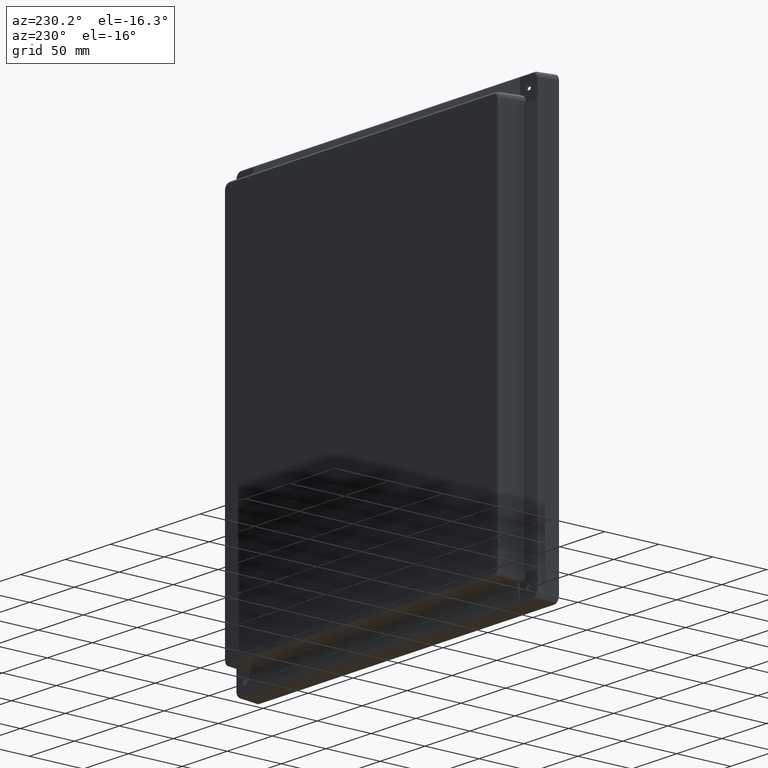
[diagram: clean part render]
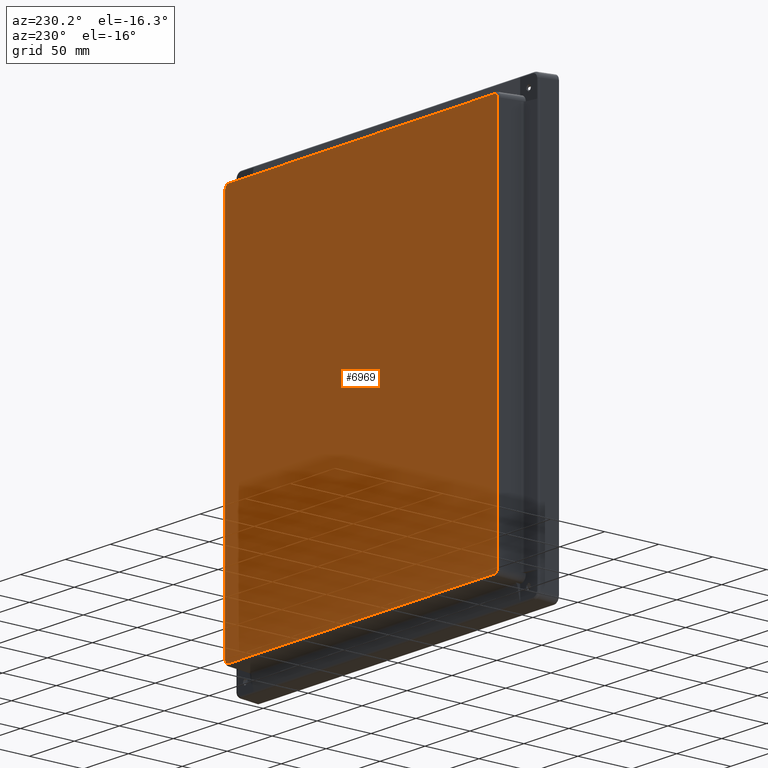
[diagram: same view with one face highlighted and labeled with its STEP entity id]
A machine part, auxiliary view. The second image highlights one B-rep face of the part: STEP entity #6969.
In plain terms, the highlighted planar face has unit normal (0, 1, 0).
Its self-contained STEP definition (entity closure, byte-faithful):
#6955 = EDGE_CURVE ( 'NONE', #7041, #6956, #9840, .T. ) ;
#6956 = VERTEX_POINT ( 'NONE', #9836 ) ;
#6957 = ORIENTED_EDGE ( 'NONE', *, *, #6958, .T. ) ;
#6958 = EDGE_CURVE ( 'NONE', #6956, #6959, #9834, .T. ) ;
#6959 = VERTEX_POINT ( 'NONE', #9833 ) ;
#6969 = ADVANCED_FACE ( 'NONE', ( #9871 ), #9870, .T. ) ;
#6970 = EDGE_LOOP ( 'NONE', ( #6971, #7033, #7036, #7039, #7042, #6957, #7019, #7022 ) ) ;
#6971 = ORIENTED_EDGE ( 'NONE', *, *, #6972, .T. ) ;
#6972 = EDGE_CURVE ( 'NONE', #6973, #6974, #9868, .T. ) ;
#6973 = VERTEX_POINT ( 'NONE', #9861 ) ;
#6974 = VERTEX_POINT ( 'NONE', #9860 ) ;
#7019 = ORIENTED_EDGE ( 'NONE', *, *, #7020, .T. ) ;
#7020 = EDGE_CURVE ( 'NONE', #6959, #7021, #9967, .T. ) ;
#7021 = VERTEX_POINT ( 'NONE', #9963 ) ;
#7022 = ORIENTED_EDGE ( 'NONE', *, *, #7023, .T. ) ;
#7023 = EDGE_CURVE ( 'NONE', #7021, #6973, #9961, .T. ) ;
#7033 = ORIENTED_EDGE ( 'NONE', *, *, #7034, .T. ) ;
#7034 = EDGE_CURVE ( 'NONE', #6974, #7035, #9994, .T. ) ;
#7035 = VERTEX_POINT ( 'NONE', #9993 ) ;
#7036 = ORIENTED_EDGE ( 'NONE', *, *, #7037, .T. ) ;
#7037 = EDGE_CURVE ( 'NONE', #7035, #7038, #9995, .T. ) ;
#7038 = VERTEX_POINT ( 'NONE', #9977 ) ;
#7039 = ORIENTED_EDGE ( 'NONE', *, *, #7040, .T. ) ;
#7040 = EDGE_CURVE ( 'NONE', #7038, #7041, #10039, .T. ) ;
#7041 = VERTEX_POINT ( 'NONE', #10038 ) ;
#7042 = ORIENTED_EDGE ( 'NONE', *, *, #6955, .T. ) ;
#7217 = CARTESIAN_POINT ( 'NONE',  ( 151.6330037502764600, 34.00000000000000000, 174.3041769975908700 ) ) ;
#8759 = CARTESIAN_POINT ( 'NONE',  ( 151.6348593914733000, 34.00000000000000000, 174.8059933008251500 ) ) ;
#9820 = CARTESIAN_POINT ( 'NONE',  ( 151.5372547930608100, 34.00000000000001400, 175.2942391105824000 ) ) ;
#9821 = CARTESIAN_POINT ( 'NONE',  ( 151.1431251170169500, 34.00000000000000000, 176.2435897431427300 ) ) ;
#9822 = CARTESIAN_POINT ( 'NONE',  ( 150.8675752403602500, 34.00000000000000000, 176.6569440721336000 ) ) ;
#9823 = CARTESIAN_POINT ( 'NONE',  ( 150.1568282157539300, 34.00000000000000000, 177.3674593839804500 ) ) ;
#9824 = CARTESIAN_POINT ( 'NONE',  ( 149.7418262364449500, 34.00000000000000700, 177.6440281517859000 ) ) ;
#9825 = CARTESIAN_POINT ( 'NONE',  ( 149.0324585220715200, 34.00000000000000000, 177.9382708566650700 ) ) ;
#9826 = CARTESIAN_POINT ( 'NONE',  ( 148.7905390636747400, 34.00000000000000000, 178.0123885963522200 ) ) ;
#9827 = CARTESIAN_POINT ( 'NONE',  ( 148.3022932539175300, 33.99999999999999300, 178.1099931947647700 ) ) ;
#9828 = CARTESIAN_POINT ( 'NONE',  ( 148.0548802001825400, 34.00000000000000000, 178.1339308130040400 ) ) ;
#9829 = CARTESIAN_POINT ( 'NONE',  ( 147.8041769975909900, 34.00000000000000000, 178.1330037502763700 ) ) ;
#9833 = CARTESIAN_POINT ( 'NONE',  ( 151.6330037502764600, 34.00000000000000000, 174.3041769975908700 ) ) ;
#9834 = B_SPLINE_CURVE_WITH_KNOTS ( 'NONE', 3,
 ( #9829, #9828, #9827, #9826, #9825, #9824, #9823, #9822, #9821, #9820, #8759, #7217 ),
 .UNSPECIFIED., .F., .F.,
 ( 4, 2, 2, 2, 2, 4 ),
 ( 0.0000000000000000000, 0.1249999999999933400, 0.2499999999999866800, 0.4999999999999911200, 0.7499999999999955600, 1.000000000000000000 ),
 .UNSPECIFIED. ) ;
#9836 = CARTESIAN_POINT ( 'NONE',  ( 147.8041769975909900, 34.00000000000000000, 178.1330037502763700 ) ) ;
#9837 = DIRECTION ( 'NONE',  ( 1.000000000000000000, 0.0000000000000000000, 0.0000000000000000000 ) ) ;
#9838 = VECTOR ( 'NONE', #9837, 1000.000000000000000 ) ;
#9839 = CARTESIAN_POINT ( 'NONE',  ( 147.7256730632264500, 34.00000000000000000, 178.1330037502763700 ) ) ;
#9840 = LINE ( 'NONE', #9839, #9838 ) ;
#9860 = CARTESIAN_POINT ( 'NONE',  ( -147.8041769975909000, 34.00000000000000000, -178.1330037502763400 ) ) ;
#9861 = CARTESIAN_POINT ( 'NONE',  ( 147.8041769975908700, 34.00000000000000000, -178.1330037502764000 ) ) ;
#9862 = DIRECTION ( 'NONE',  ( -1.000000000000000000, 0.0000000000000000000, 0.0000000000000000000 ) ) ;
#9863 = VECTOR ( 'NONE', #9862, 1000.000000000000000 ) ;
#9864 = CARTESIAN_POINT ( 'NONE',  ( -147.7256730632265100, 34.00000000000000000, -178.1330037502763400 ) ) ;
#9865 = DIRECTION ( 'NONE',  ( 0.0000000000000000000, -0.0000000000000000000, 1.000000000000000000 ) ) ;
#9866 = DIRECTION ( 'NONE',  ( 0.0000000000000000000, 1.000000000000000000, 0.0000000000000000000 ) ) ;
#9867 = AXIS2_PLACEMENT_3D ( 'NONE', #9869, #9866, #9865 ) ;
#9868 = LINE ( 'NONE', #9864, #9863 ) ;
#9869 = CARTESIAN_POINT ( 'NONE',  ( -155.0000000000000000, 34.00000000000000000, 181.5000000000000000 ) ) ;
#9870 = PLANE ( 'NONE',  #9867 ) ;
#9871 = FACE_OUTER_BOUND ( 'NONE', #6970, .T. ) ;
#9944 = CARTESIAN_POINT ( 'NONE',  ( 147.8041769975908700, 34.00000000000000000, -178.1330037502764000 ) ) ;
#9945 = CARTESIAN_POINT ( 'NONE',  ( 148.3059933008134100, 34.00000000000000000, -178.1348593914731000 ) ) ;
#9946 = CARTESIAN_POINT ( 'NONE',  ( 148.7942391105706600, 34.00000000000000000, -178.0372547930605500 ) ) ;
#9947 = CARTESIAN_POINT ( 'NONE',  ( 149.7435897431545000, 34.00000000000000000, -177.6431251170169200 ) ) ;
#9948 = CARTESIAN_POINT ( 'NONE',  ( 150.1569440720856200, 34.00000000000000700, -177.3675752403849200 ) ) ;
#9949 = CARTESIAN_POINT ( 'NONE',  ( 150.8674593840284500, 33.99999999999999300, -176.6568282157290100 ) ) ;
#9950 = CARTESIAN_POINT ( 'NONE',  ( 151.1440281517256200, 34.00000000000000700, -176.2418262365283100 ) ) ;
#9951 = CARTESIAN_POINT ( 'NONE',  ( 151.4382708566953400, 34.00000000000000700, -175.5324585220296600 ) ) ;
#9952 = CARTESIAN_POINT ( 'NONE',  ( 151.5123885963524500, 34.00000000000000000, -175.2905390637208400 ) ) ;
#9953 = CARTESIAN_POINT ( 'NONE',  ( 151.6099931947651400, 33.99999999999999300, -174.8022932539635700 ) ) ;
#9954 = CARTESIAN_POINT ( 'NONE',  ( 151.6339308130042700, 34.00000000000000000, -174.5548802002131500 ) ) ;
#9955 = CARTESIAN_POINT ( 'NONE',  ( 151.6330037502764600, 34.00000000000000000, -174.3041769975908200 ) ) ;
#9961 = B_SPLINE_CURVE_WITH_KNOTS ( 'NONE', 3,
 ( #9955, #9954, #9953, #9952, #9951, #9950, #9949, #9948, #9947, #9946, #9945, #9944 ),
 .UNSPECIFIED., .F., .F.,
 ( 4, 2, 2, 2, 2, 4 ),
 ( 0.0000000000000000000, 0.1250000000000066600, 0.2500000000000133200, 0.5000000000000088800, 0.7500000000000044400, 1.000000000000000000 ),
 .UNSPECIFIED. ) ;
#9963 = CARTESIAN_POINT ( 'NONE',  ( 151.6330037502764600, 34.00000000000000000, -174.3041769975908200 ) ) ;
#9964 = DIRECTION ( 'NONE',  ( -1.529232816288094800E-016, 0.0000000000000000000, -1.000000000000000000 ) ) ;
#9965 = VECTOR ( 'NONE', #9964, 1000.000000000000000 ) ;
#9966 = CARTESIAN_POINT ( 'NONE',  ( 151.6330037502764600, 34.00000000000000000, -174.2256730632264500 ) ) ;
#9967 = LINE ( 'NONE', #9966, #9965 ) ;
#9977 = CARTESIAN_POINT ( 'NONE',  ( -151.6330037502763700, 34.00000000000000000, 174.3041769975908700 ) ) ;
#9978 = CARTESIAN_POINT ( 'NONE',  ( -151.6330037502764300, 34.00000000000000000, -174.3041769975908700 ) ) ;
#9979 = CARTESIAN_POINT ( 'NONE',  ( -151.6348593914732400, 34.00000000000000000, -174.8059933008369500 ) ) ;
#9980 = CARTESIAN_POINT ( 'NONE',  ( -151.5372547930607000, 34.00000000000000700, -175.2942391105941900 ) ) ;
#9981 = CARTESIAN_POINT ( 'NONE',  ( -151.1431251170168400, 33.99999999999999300, -176.2435897431308500 ) ) ;
#9982 = CARTESIAN_POINT ( 'NONE',  ( -150.8675752403518100, 34.00000000000001400, -176.6569440721420100 ) ) ;
#9983 = CARTESIAN_POINT ( 'NONE',  ( -150.1568282157623200, 33.99999999999999300, -177.3674593839719800 ) ) ;
#9984 = CARTESIAN_POINT ( 'NONE',  ( -149.7418262364566300, 34.00000000000000700, -177.6440281517740200 ) ) ;
#9985 = CARTESIAN_POINT ( 'NONE',  ( -149.0324585220655500, 34.00000000000000000, -177.9382708566710400 ) ) ;
#9986 = CARTESIAN_POINT ( 'NONE',  ( -148.7905390636872200, 34.00000000000000700, -178.0123885963523400 ) ) ;
#9987 = CARTESIAN_POINT ( 'NONE',  ( -148.3022932539299700, 34.00000000000000000, -178.1099931947648500 ) ) ;
#9988 = CARTESIAN_POINT ( 'NONE',  ( -148.0548802001907800, 34.00000000000001400, -178.1339308130041800 ) ) ;
#9989 = CARTESIAN_POINT ( 'NONE',  ( -147.8041769975909000, 34.00000000000000000, -178.1330037502763400 ) ) ;
#9990 = DIRECTION ( 'NONE',  ( 1.529232816288094800E-016, 0.0000000000000000000, 1.000000000000000000 ) ) ;
#9991 = VECTOR ( 'NONE', #9990, 1000.000000000000000 ) ;
#9992 = CARTESIAN_POINT ( 'NONE',  ( -151.6330037502763700, 34.00000000000000000, 174.2256730632263400 ) ) ;
#9993 = CARTESIAN_POINT ( 'NONE',  ( -151.6330037502764300, 34.00000000000000000, -174.3041769975908700 ) ) ;
#9994 = B_SPLINE_CURVE_WITH_KNOTS ( 'NONE', 3,
 ( #9989, #9988, #9987, #9986, #9985, #9984, #9983, #9982, #9981, #9980, #9979, #9978 ),
 .UNSPECIFIED., .F., .F.,
 ( 4, 2, 2, 2, 2, 4 ),
 ( 0.0000000000000000000, 0.1250000000000019700, 0.2500000000000039400, 0.5000000000000026600, 0.7500000000000013300, 1.000000000000000000 ),
 .UNSPECIFIED. ) ;
#9995 = LINE ( 'NONE', #9992, #9991 ) ;
#10026 = CARTESIAN_POINT ( 'NONE',  ( -147.8041769975908400, 34.00000000000000000, 178.1330037502763700 ) ) ;
#10027 = CARTESIAN_POINT ( 'NONE',  ( -148.3059933008700600, 33.99999999999999300, 178.1348593914733300 ) ) ;
#10028 = CARTESIAN_POINT ( 'NONE',  ( -148.7942391106272700, 34.00000000000000000, 178.0372547930607300 ) ) ;
#10029 = CARTESIAN_POINT ( 'NONE',  ( -149.7435897430977700, 34.00000000000000700, 177.6431251170167500 ) ) ;
#10030 = CARTESIAN_POINT ( 'NONE',  ( -150.1569440721260100, 34.00000000000000700, 177.3675752403445600 ) ) ;
#10031 = CARTESIAN_POINT ( 'NONE',  ( -150.8674593839879500, 34.00000000000000700, 176.6568282157695100 ) ) ;
#10032 = CARTESIAN_POINT ( 'NONE',  ( -151.1440281517493800, 34.00000000000000000, 176.2418262365046400 ) ) ;
#10033 = CARTESIAN_POINT ( 'NONE',  ( -151.4382708566834300, 34.00000000000000000, 175.5324585220415400 ) ) ;
#10034 = CARTESIAN_POINT ( 'NONE',  ( -151.5123885963523700, 33.99999999999999300, 175.2905390636958900 ) ) ;
#10035 = CARTESIAN_POINT ( 'NONE',  ( -151.6099931947649400, 34.00000000000000000, 174.8022932539387000 ) ) ;
#10036 = CARTESIAN_POINT ( 'NONE',  ( -151.6339308130042100, 34.00000000000000700, 174.5548802001965800 ) ) ;
#10037 = CARTESIAN_POINT ( 'NONE',  ( -151.6330037502763700, 34.00000000000000000, 174.3041769975908700 ) ) ;
#10038 = CARTESIAN_POINT ( 'NONE',  ( -147.8041769975908400, 34.00000000000000000, 178.1330037502763700 ) ) ;
#10039 = B_SPLINE_CURVE_WITH_KNOTS ( 'NONE', 3,
 ( #10037, #10036, #10035, #10034, #10033, #10032, #10031, #10030, #10029, #10028, #10027, #10026 ),
 .UNSPECIFIED., .F., .F.,
 ( 4, 2, 2, 2, 2, 4 ),
 ( 0.0000000000000000000, 0.1249999999999952800, 0.2499999999999905600, 0.4999999999999936700, 0.7499999999999967800, 1.000000000000000000 ),
 .UNSPECIFIED. ) ;